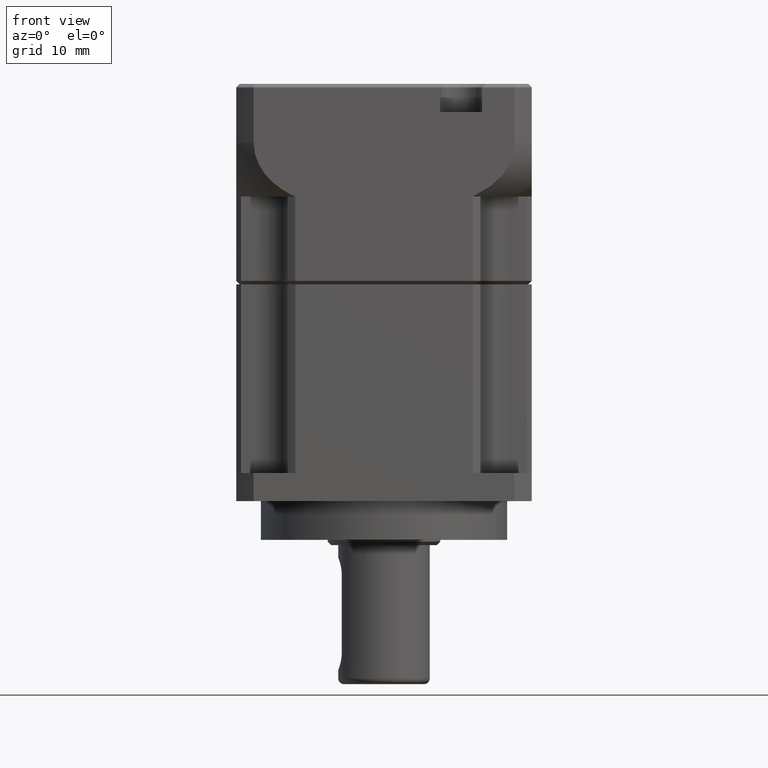
[diagram: clean part render]
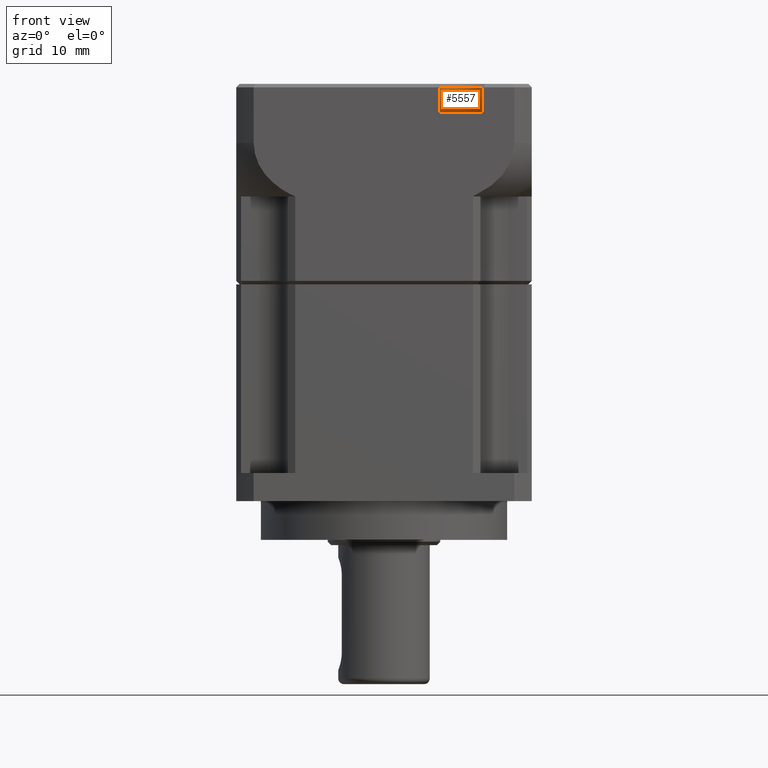
[diagram: same view with one face highlighted and labeled with its STEP entity id]
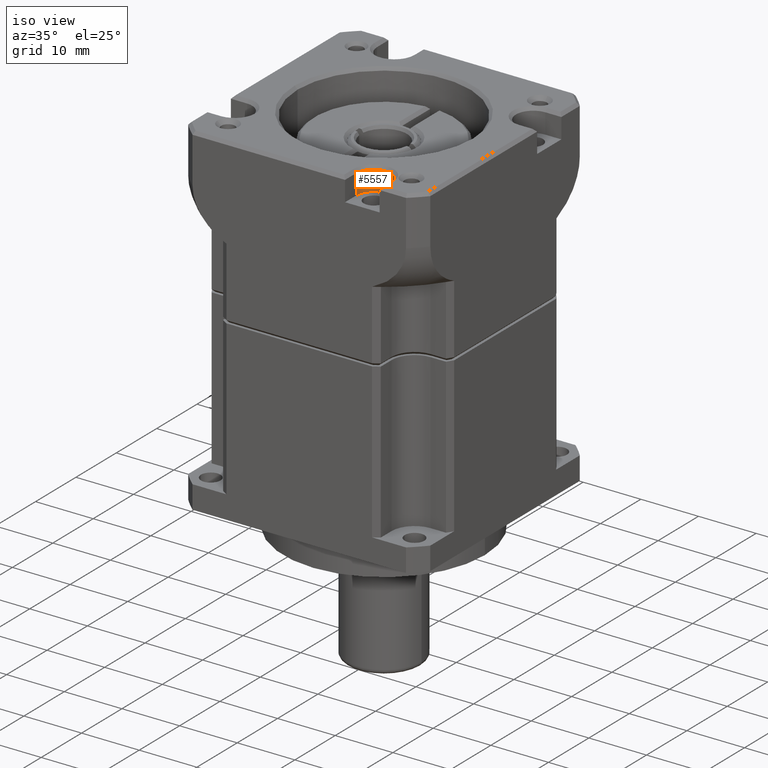
[diagram: same view with one face highlighted and labeled with its STEP entity id]
A machine part, front view. The second image highlights one B-rep face of the part: STEP entity #5557.
A second angle (iso view) of the same face is appended — the face is thin or edge-on in the first view.
In plain terms, the highlighted cylindrical surface (edge-blend (fillet) strip) has radius 3 mm, axis along (-0, 0, 1).
Its self-contained STEP definition (entity closure, byte-faithful):
#10 = DIRECTION ( 'NONE',  ( -0.0000000000000000000, -0.0000000000000000000, -1.000000000000000000 ) ) ;
#83 = VECTOR ( 'NONE', #10, 1000.000000000000000 ) ;
#466 = ORIENTED_EDGE ( 'NONE', *, *, #10403, .F. ) ;
#1333 = ORIENTED_EDGE ( 'NONE', *, *, #5923, .F. ) ;
#1953 = DIRECTION ( 'NONE',  ( -1.000000000000000000, 0.0000000000000000000, 0.0000000000000000000 ) ) ;
#2601 = CARTESIAN_POINT ( 'NONE',  ( -7.944559091838647700, -18.21480513991990000, 4.000000000000000000 ) ) ;
#3292 = EDGE_CURVE ( 'NONE', #10867, #5443, #9325, .T. ) ;
#3702 = DIRECTION ( 'NONE',  ( 0.0000000000000000000, 0.0000000000000000000, -1.000000000000000000 ) ) ;
#4069 = AXIS2_PLACEMENT_3D ( 'NONE', #5840, #7634, #4128 ) ;
#4128 = DIRECTION ( 'NONE',  ( -1.000000000000000000, 0.0000000000000000000, 0.0000000000000000000 ) ) ;
#4602 = DIRECTION ( 'NONE',  ( -0.0000000000000000000, -0.0000000000000000000, 1.000000000000000000 ) ) ;
#4660 = DIRECTION ( 'NONE',  ( -0.0000000000000000000, -0.0000000000000000000, 1.000000000000000000 ) ) ;
#4944 = CIRCLE ( 'NONE', #4069, 3.000000000000000900 ) ;
#5014 = CARTESIAN_POINT ( 'NONE',  ( -13.94455909182475900, -18.21480513991990000, 0.5000000000692064200 ) ) ;
#5122 = AXIS2_PLACEMENT_3D ( 'NONE', #7019, #3702, #10519 ) ;
#5232 = FACE_OUTER_BOUND ( 'NONE', #5700, .T. ) ;
#5443 = VERTEX_POINT ( 'NONE', #6867 ) ;
#5557 = ADVANCED_FACE ( 'NONE', ( #5232 ), #6032, .F. ) ;
#5635 = LINE ( 'NONE', #10407, #83 ) ;
#5700 = EDGE_LOOP ( 'NONE', ( #466, #7080, #9044, #1333 ) ) ;
#5840 = CARTESIAN_POINT ( 'NONE',  ( -10.94455909183860100, -18.21480513991990000, 0.5000000002214617400 ) ) ;
#5847 = CARTESIAN_POINT ( 'NONE',  ( -7.944559091866320700, -18.21480513991989600, 0.5000000001937788800 ) ) ;
#5923 = EDGE_CURVE ( 'NONE', #8618, #10867, #4944, .T. ) ;
#6032 = CYLINDRICAL_SURFACE ( 'NONE', #5122, 3.000000000000000900 ) ;
#6867 = CARTESIAN_POINT ( 'NONE',  ( -13.94455909183860100, -18.21480513991990000, 4.000000000000000000 ) ) ;
#7019 = CARTESIAN_POINT ( 'NONE',  ( -10.94455909183860100, -18.21480513991990000, 4.000000000000000000 ) ) ;
#7080 = ORIENTED_EDGE ( 'NONE', *, *, #7210, .T. ) ;
#7210 = EDGE_CURVE ( 'NONE', #9773, #5443, #10083, .T. ) ;
#7634 = DIRECTION ( 'NONE',  ( -0.0000000000000000000, -0.0000000000000000000, 1.000000000000000000 ) ) ;
#8618 = VERTEX_POINT ( 'NONE', #5847 ) ;
#9044 = ORIENTED_EDGE ( 'NONE', *, *, #3292, .F. ) ;
#9325 = LINE ( 'NONE', #9904, #10273 ) ;
#9326 = AXIS2_PLACEMENT_3D ( 'NONE', #9739, #4602, #1953 ) ;
#9739 = CARTESIAN_POINT ( 'NONE',  ( -10.94455909183860100, -18.21480513991990000, 4.000000000000000000 ) ) ;
#9773 = VERTEX_POINT ( 'NONE', #2601 ) ;
#9904 = CARTESIAN_POINT ( 'NONE',  ( -13.94455909183860100, -18.21480513991990000, 4.000000000000000000 ) ) ;
#10083 = CIRCLE ( 'NONE', #9326, 3.000000000000000900 ) ;
#10273 = VECTOR ( 'NONE', #4660, 1000.000000000000000 ) ;
#10403 = EDGE_CURVE ( 'NONE', #9773, #8618, #5635, .T. ) ;
#10407 = CARTESIAN_POINT ( 'NONE',  ( -7.944559091838649500, -18.21480513991990000, 4.000000000000000000 ) ) ;
#10519 = DIRECTION ( 'NONE',  ( -1.000000000000000000, 0.0000000000000000000, 0.0000000000000000000 ) ) ;
#10867 = VERTEX_POINT ( 'NONE', #5014 ) ;